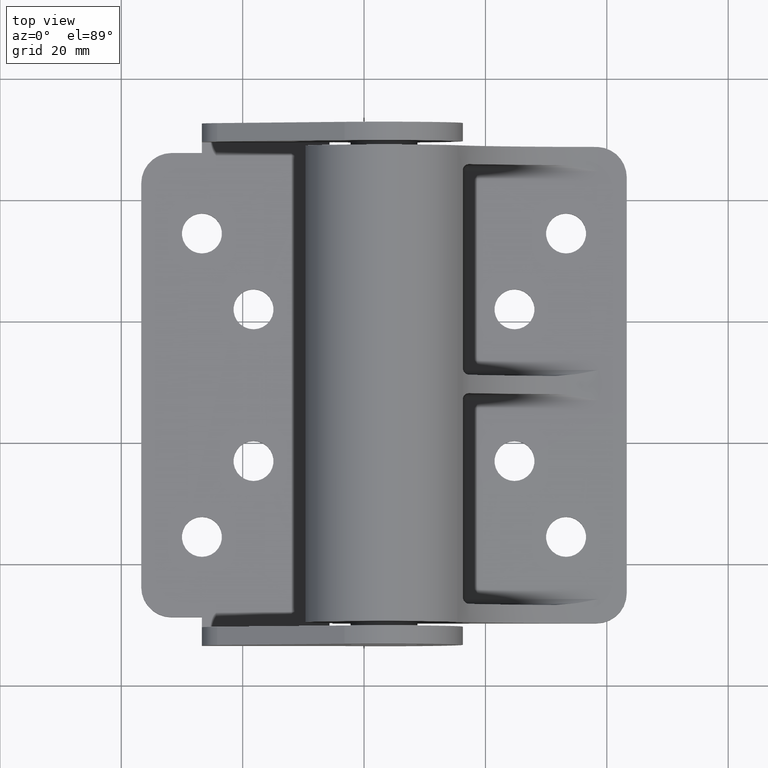
[diagram: clean part render]
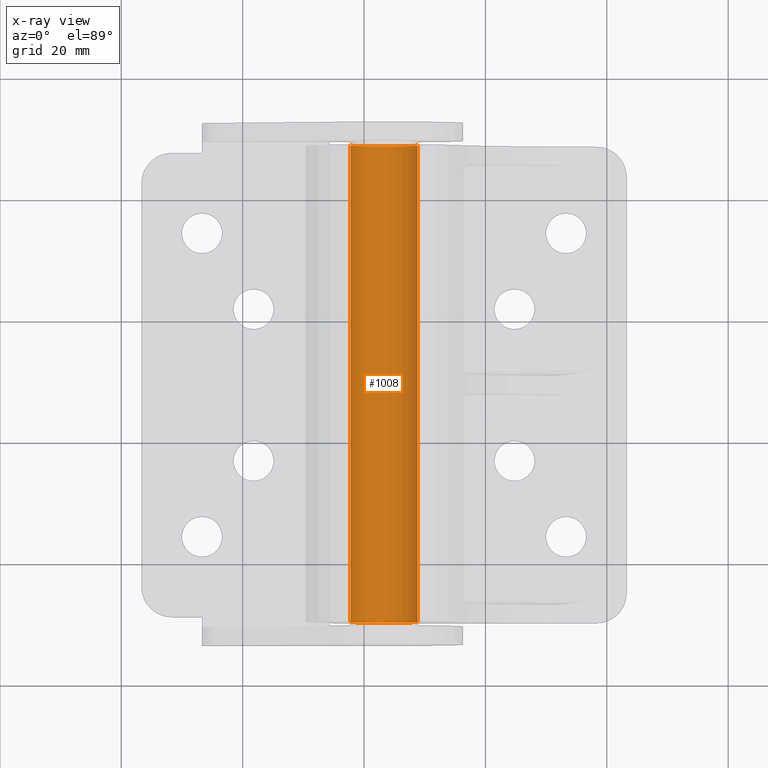
[diagram: x-ray — body ghosted, one internal face saturated and labeled with its STEP entity id]
A machine part, top view, then the same camera in x-ray: the body is ghosted and one INTERNAL B-rep face — a face not visible from any outside direction — is saturated and labeled: STEP entity #1008.
In plain terms, the highlighted cylindrical surface (edge-blend (fillet) strip) has radius 5.5 mm, axis along (0, 1, 0).
Its self-contained STEP definition (entity closure, byte-faithful):
#104 = EDGE_CURVE ( 'NONE', #3259, #2173, #279, .T. ) ;
#203 = AXIS2_PLACEMENT_3D ( 'NONE', #2811, #726, #2509 ) ;
#220 = VERTEX_POINT ( 'NONE', #1240 ) ;
#279 = CIRCLE ( 'NONE', #203, 5.500000000000000000 ) ;
#393 = EDGE_CURVE ( 'NONE', #2987, #220, #1343, .T. ) ;
#412 = CARTESIAN_POINT ( 'NONE',  ( -5.500000000000000000, 6.735557395310442000E-016, -917.0000000000000000 ) ) ;
#473 = LINE ( 'NONE', #2300, #3552 ) ;
#636 = ORIENTED_EDGE ( 'NONE', *, *, #393, .T. ) ;
#726 = DIRECTION ( 'NONE',  ( 0.0000000000000000000, 0.0000000000000000000, 1.000000000000000000 ) ) ;
#869 = ORIENTED_EDGE ( 'NONE', *, *, #3186, .F. ) ;
#1000 = DIRECTION ( 'NONE',  ( 0.0000000000000000000, 0.0000000000000000000, 1.000000000000000000 ) ) ;
#1008 = ADVANCED_FACE ( 'NONE', ( #1836 ), #1741, .F. ) ;
#1109 = LINE ( 'NONE', #412, #1718 ) ;
#1240 = CARTESIAN_POINT ( 'NONE',  ( -5.500000000000000000, 6.735557395310442000E-016, 82.25000000000000000 ) ) ;
#1338 = ORIENTED_EDGE ( 'NONE', *, *, #104, .F. ) ;
#1343 = CIRCLE ( 'NONE', #1528, 5.500000000000000000 ) ;
#1528 = AXIS2_PLACEMENT_3D ( 'NONE', #3297, #3494, #3313 ) ;
#1625 = CARTESIAN_POINT ( 'NONE',  ( 5.500000000000000000, 0.0000000000000000000, 3.750000000000000000 ) ) ;
#1709 = AXIS2_PLACEMENT_3D ( 'NONE', #3540, #3788, #2317 ) ;
#1718 = VECTOR ( 'NONE', #1000, 1000.000000000000000 ) ;
#1741 = CYLINDRICAL_SURFACE ( 'NONE', #1709, 5.500000000000000000 ) ;
#1836 = FACE_OUTER_BOUND ( 'NONE', #2356, .T. ) ;
#2069 = EDGE_CURVE ( 'NONE', #3259, #2987, #473, .T. ) ;
#2173 = VERTEX_POINT ( 'NONE', #3561 ) ;
#2300 = CARTESIAN_POINT ( 'NONE',  ( 5.500000000000000000, 0.0000000000000000000, -917.0000000000000000 ) ) ;
#2317 = DIRECTION ( 'NONE',  ( 1.000000000000000000, 0.0000000000000000000, 0.0000000000000000000 ) ) ;
#2356 = EDGE_LOOP ( 'NONE', ( #869, #1338, #2497, #636 ) ) ;
#2497 = ORIENTED_EDGE ( 'NONE', *, *, #2069, .T. ) ;
#2509 = DIRECTION ( 'NONE',  ( 1.000000000000000000, 0.0000000000000000000, 0.0000000000000000000 ) ) ;
#2617 = DIRECTION ( 'NONE',  ( 0.0000000000000000000, 0.0000000000000000000, 1.000000000000000000 ) ) ;
#2811 = CARTESIAN_POINT ( 'NONE',  ( 0.0000000000000000000, 0.0000000000000000000, 3.750000000000000000 ) ) ;
#2987 = VERTEX_POINT ( 'NONE', #3469 ) ;
#3186 = EDGE_CURVE ( 'NONE', #2173, #220, #1109, .T. ) ;
#3259 = VERTEX_POINT ( 'NONE', #1625 ) ;
#3297 = CARTESIAN_POINT ( 'NONE',  ( 0.0000000000000000000, 0.0000000000000000000, 82.25000000000000000 ) ) ;
#3313 = DIRECTION ( 'NONE',  ( 1.000000000000000000, 0.0000000000000000000, 0.0000000000000000000 ) ) ;
#3469 = CARTESIAN_POINT ( 'NONE',  ( 5.500000000000000000, 0.0000000000000000000, 82.25000000000000000 ) ) ;
#3494 = DIRECTION ( 'NONE',  ( 0.0000000000000000000, 0.0000000000000000000, 1.000000000000000000 ) ) ;
#3540 = CARTESIAN_POINT ( 'NONE',  ( 0.0000000000000000000, 0.0000000000000000000, -917.0000000000000000 ) ) ;
#3552 = VECTOR ( 'NONE', #2617, 1000.000000000000000 ) ;
#3561 = CARTESIAN_POINT ( 'NONE',  ( -5.500000000000000000, 6.735557395310442000E-016, 3.750000000000000000 ) ) ;
#3788 = DIRECTION ( 'NONE',  ( 0.0000000000000000000, 0.0000000000000000000, 1.000000000000000000 ) ) ;